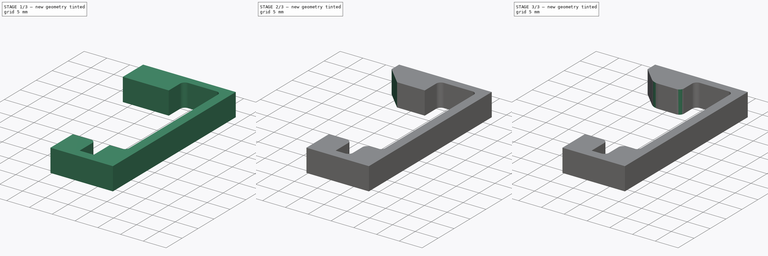
[diagram: build sequence overview — one tinted view per stage of 3, left to right]
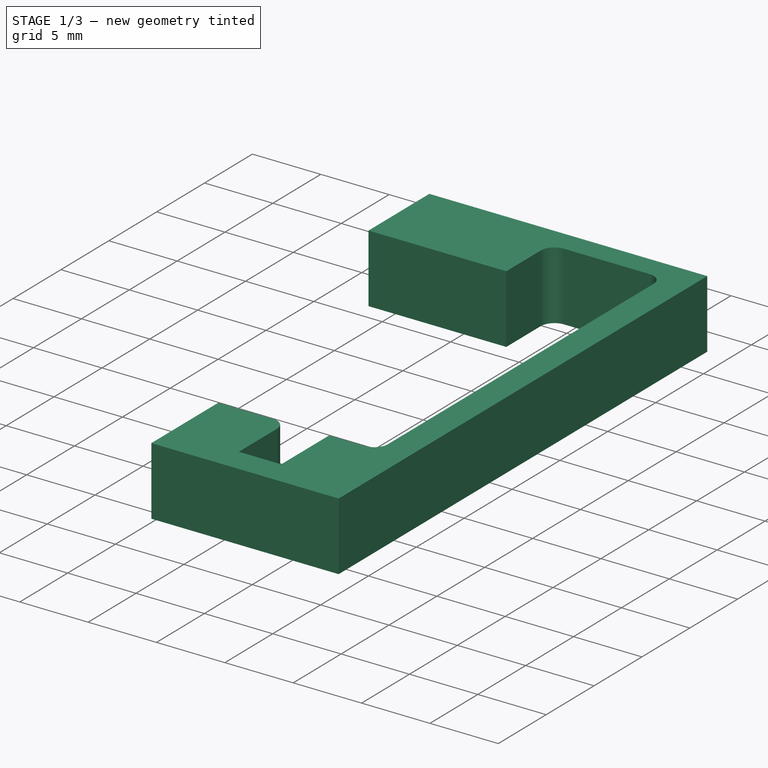
[diagram: stage 1 of 3 — iso view after this stage's code; geometry added in this stage tinted green]
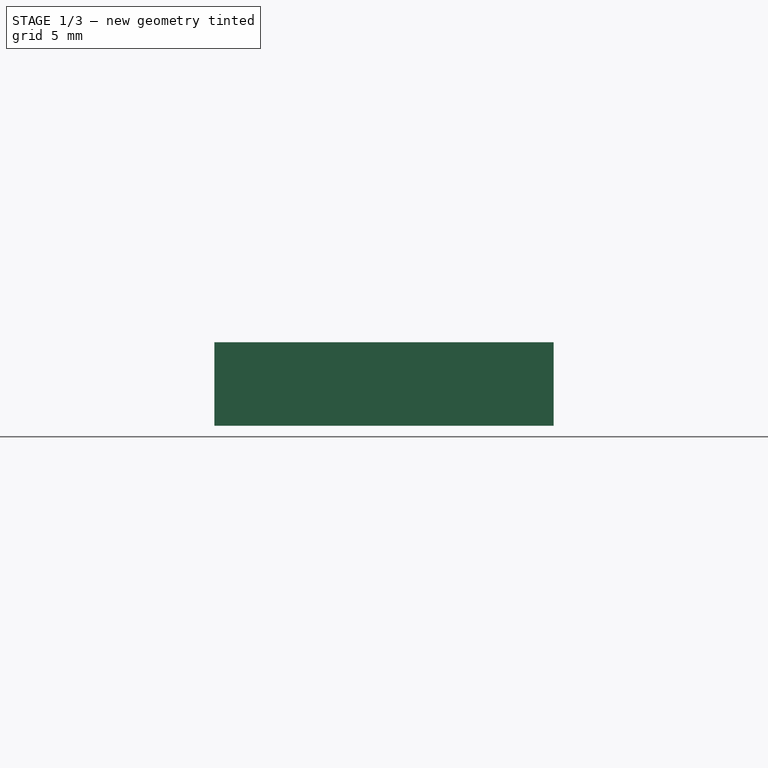
[diagram: stage 1 of 3 — front view after this stage's code; geometry added in this stage tinted green]
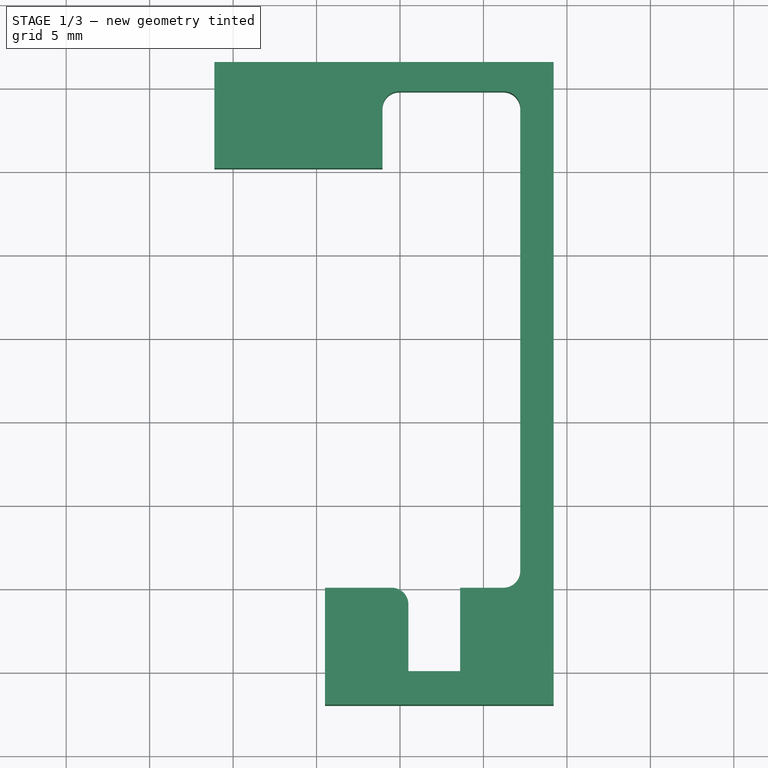
[diagram: stage 1 of 3 — top view after this stage's code; geometry added in this stage tinted green]
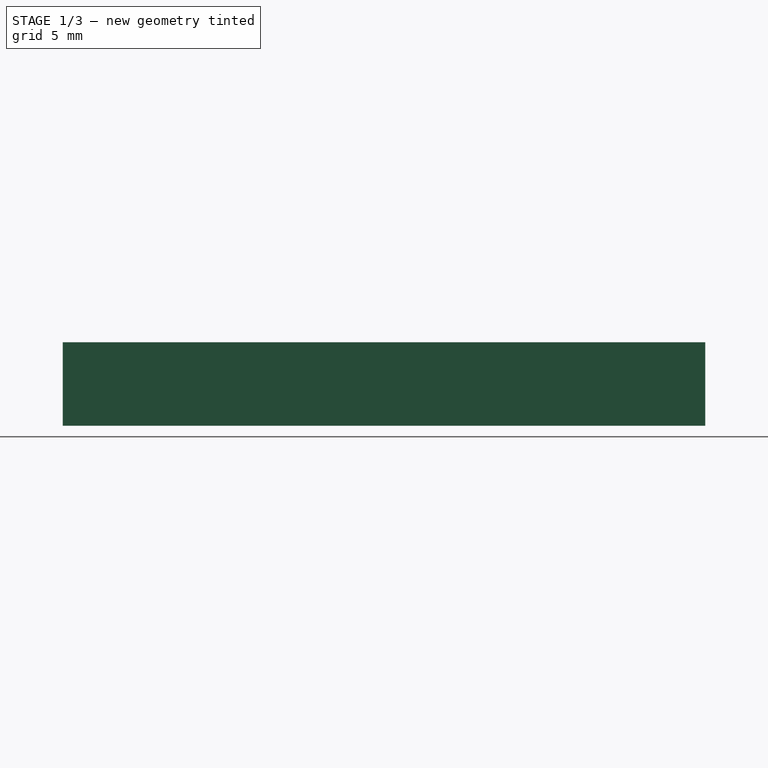
[diagram: stage 1 of 3 — right view after this stage's code; geometry added in this stage tinted green]
FCSTD DOCUMENT  (FreeCAD 1.0R39109 (Git))
Label: sv08-top-clip-v2
License: All rights reserved
LicenseURL: https://en.wikipedia.org/wiki/All_rights_reserved
objects: PartDesign::Fillet×4, PartDesign::Body×2, PartDesign::ShapeBinder×1, Sketcher::SketchObject×1, PartDesign::Pad×1, PartDesign::Chamfer×1
note: 23 computed .brp shape members not serialized (recipe doc carries the construction recipe); baked Part::Feature solids carry a one-line shape summary decoded from their .brp

FEATURE [PartDesign::Body] Body
  AllowCompound = false
  Origin = -> Origin
FEATURE [PartDesign::ShapeBinder] CopyPart__Feature003
  Placement = pos=(211.804,488.826,357.797) rot=(0,0.707107,-0.707107;3.14159rad)
  TraceSupport = false
FEATURE [Sketcher::SketchObject] Sketch
  ArcFitTolerance = 1e-06
  AttachmentSupport = -> [CopyPart__Feature003]
  ExternalGeometry = -> [CopyPart__Feature003]
  FullyConstrained = false
  MakeInternals = false
  MapMode = 5
  Placement = pos=(211.804,488.826,357.797) rot=(0,0,1;3.14159rad)
  sketch-geometry (15):
    g0: LineSegment StartX=3.2 StartY=28.8 StartZ=0 EndX=-0.4 EndY=28.8 EndZ=0
    g1: LineSegment StartX=-0.4 StartY=28.8 StartZ=0 EndX=-0.4 EndY=-0.95 EndZ=0
    g2: LineSegment StartX=-0.4 StartY=-0.95 StartZ=0 EndX=7.85 EndY=-0.95 EndZ=0
    g3: LineSegment StartX=7.85 StartY=-0.95 StartZ=0 EndX=7.85 EndY=3.65 EndZ=0
    g4: LineSegment StartX=-2.4 StartY=-2.7 StartZ=0 EndX=-2.4 EndY=35.8 EndZ=0
    g5: LineSegment StartX=-2.4 StartY=35.8 StartZ=0 EndX=11.3 EndY=35.8 EndZ=0
    g6: LineSegment StartX=11.3 StartY=35.8 StartZ=0 EndX=11.3 EndY=28.8 EndZ=0
    g7: LineSegment StartX=11.3 StartY=28.8 StartZ=0 EndX=6.3 EndY=28.8 EndZ=0
    g8: LineSegment StartX=6.3 StartY=28.8 StartZ=0 EndX=6.3 EndY=33.8 EndZ=0
    g9: LineSegment StartX=6.3 StartY=33.8 StartZ=0 EndX=3.2 EndY=33.8 EndZ=0
    g10: LineSegment StartX=3.2 StartY=33.8 StartZ=0 EndX=3.2 EndY=28.8 EndZ=0
    g11: LineSegment StartX=-2.4 StartY=-2.7 StartZ=0 EndX=7.85 EndY=-2.7 EndZ=0
    g12: LineSegment StartX=7.85 StartY=3.65 StartZ=0 EndX=17.9255 EndY=3.65 EndZ=0
    g13: LineSegment StartX=17.9255 StartY=3.65 StartZ=0 EndX=17.9255 EndY=-2.7 EndZ=0
    g14: LineSegment StartX=17.9255 StartY=-2.7 StartZ=0 EndX=7.85 EndY=-2.7 EndZ=0
  constraints (44):
    c: Horizontal(g0)
    c: Coincident(g0,g1)
    c: Vertical(g1)
    c: Coincident(g1,g2)
    c: Horizontal(g2)
    c: Coincident(g2,g3)
    c: Vertical(g3)
    c: Vertical(g4)
    c: Coincident(g4,g5)
    c: Horizontal(g5)
    c: Distance(g-2,g1) = 0.4
    c: Distance(g0,g-16) = 0.3
    c: Coincident(g5,g6)
    c: Vertical(g6)
    c: Coincident(g6,g7)
    c: Horizontal(g7)
    c: Coincident(g7,g8)
    c: Vertical(g8)
    c: Coincident(g8,g9)
    c: Horizontal(g9)
    c: Coincident(g9,g10)
    c: Coincident(g10,g0)
    c: Vertical(g10)
    c: Distance(g-14,g10) = 0.3
    c: Distance(g-13,g8) = 0.3
    c: Distance(g-15,g9) = 0.3
    c: Distance(g-12,g7) = 0.3
    c: Distance(g9,g5) = 2
    c: Distance(g1,g4) = 2
    c: Distance(g-4,g3) = 0.35
    c: Distance(g8,g6) = 5
    c: Horizontal(g11)
    c: Coincident(g4,g11)
    c: Coincident(g3,g12)
    c: Horizontal(g12)
    c: Distance(g-9,g12) = 0.35
    c: Distance(g2,g11) = 1.75
    c: Coincident(g12,g13)
    c: Vertical(g13)
    c: Coincident(g13,g14)
    c: Coincident(g14,g11)
    c: Horizontal(g14)
    c: Vertical(g11,g2)
    c: Distance(g-1,g2) = 0.95
FEATURE [PartDesign::Pad] Pad
  Direction = (3e-15,0,1)
  Length = 5
  Length2 = 10
  Placement = pos=(211.804,488.826,357.797) rot=(0,0.707107,-0.707107;3.14159rad)
  Profile = -> Sketch
  ReferenceAxis = -> Sketch [N_Axis]
  Refine = true
  Suppressed = false
  Type = 0
FEATURE [PartDesign::Fillet] Fillet
  Base = -> Pad [Edge29,Edge26,Edge23,Edge11]
  BaseFeature = -> Pad
  Placement = pos=(211.804,488.826,357.797) rot=(0,0.707107,-0.707107;3.14159rad)
  Radius = 1
  Refine = true
  SupportTransform = false
  Suppressed = false
  UseAllEdges = false
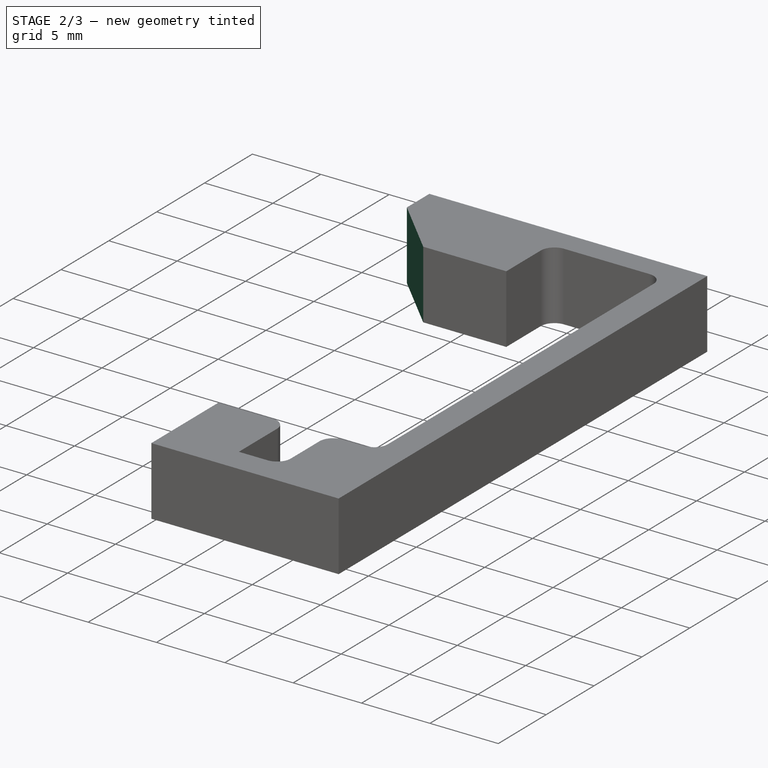
[diagram: stage 2 of 3 — iso view after this stage's code; geometry added in this stage tinted green]
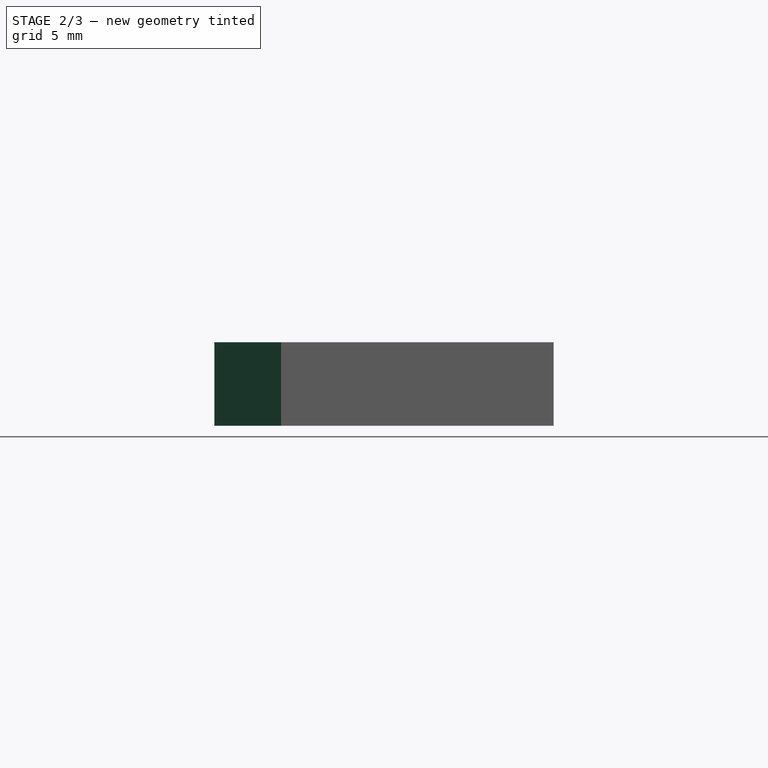
[diagram: stage 2 of 3 — front view after this stage's code; geometry added in this stage tinted green]
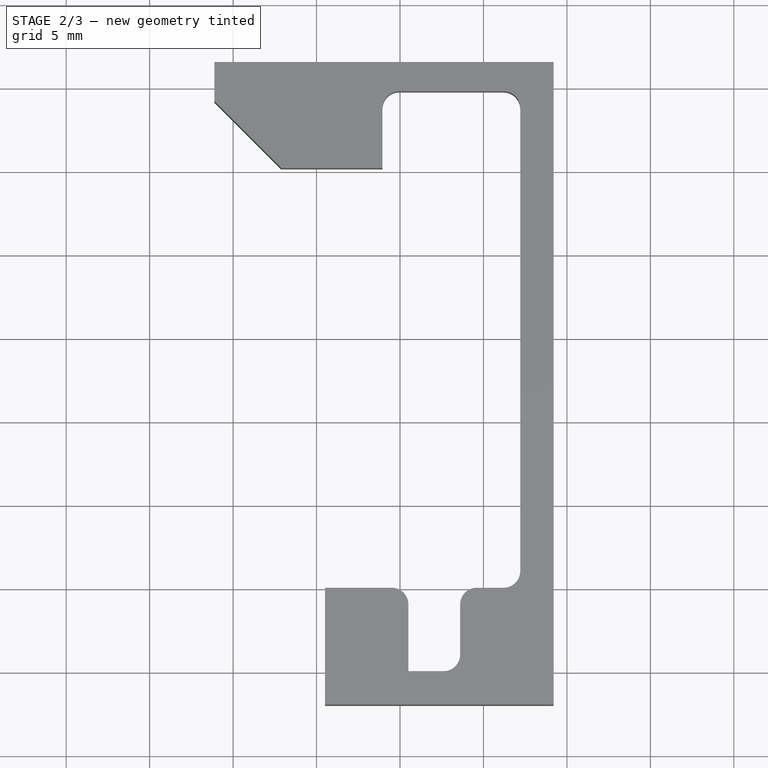
[diagram: stage 2 of 3 — top view after this stage's code; geometry added in this stage tinted green]
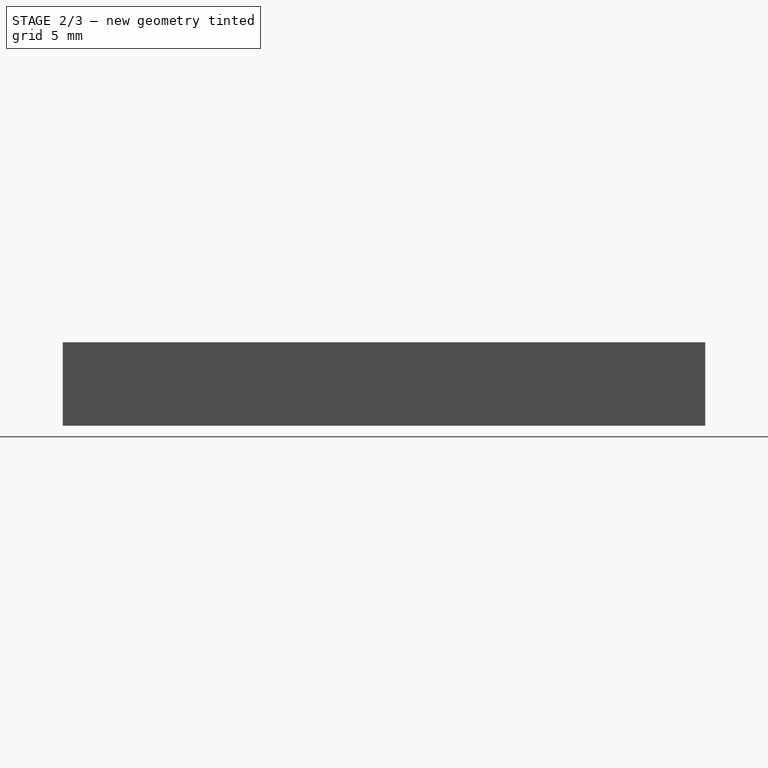
[diagram: stage 2 of 3 — right view after this stage's code; geometry added in this stage tinted green]
FEATURE [PartDesign::Fillet] Fillet001
  Base = -> Fillet [Edge45,Edge43]
  BaseFeature = -> Fillet
  Placement = pos=(211.804,488.826,357.797) rot=(0,0.707107,-0.707107;3.14159rad)
  Radius = 1
  Refine = true
  SupportTransform = false
  Suppressed = false
  UseAllEdges = false
FEATURE [PartDesign::Chamfer] Chamfer
  Angle = 45
  Base = -> Fillet001 [Edge54]
  BaseFeature = -> Fillet001
  ChamferType = 0
  FlipDirection = false
  Placement = pos=(211.804,488.826,357.797) rot=(0,0.707107,-0.707107;3.14159rad)
  Refine = true
  Size = 4
  Size2 = 1
  SupportTransform = false
  Suppressed = false
  UseAllEdges = false
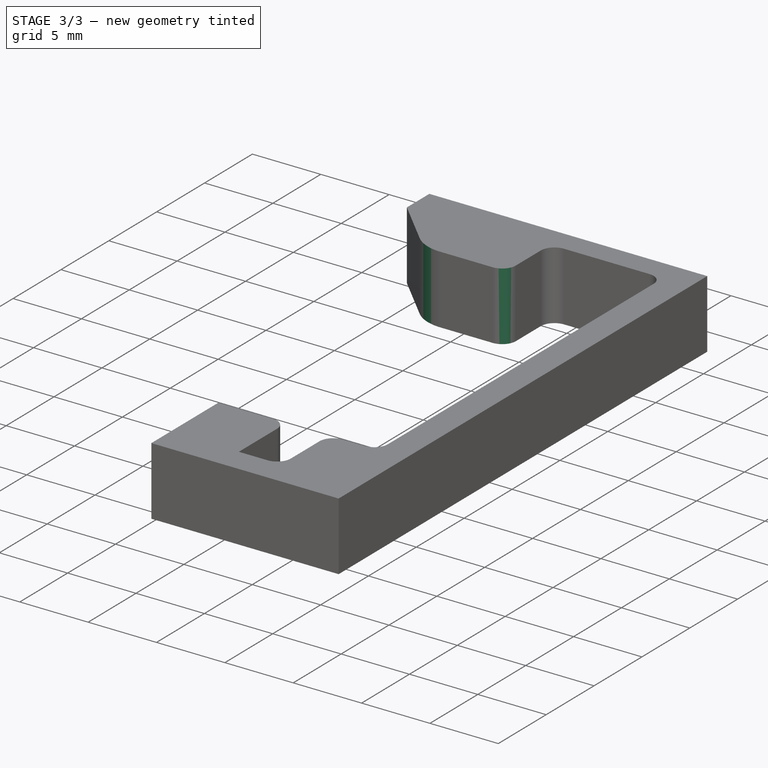
[diagram: stage 3 of 3 — iso view after this stage's code; geometry added in this stage tinted green]
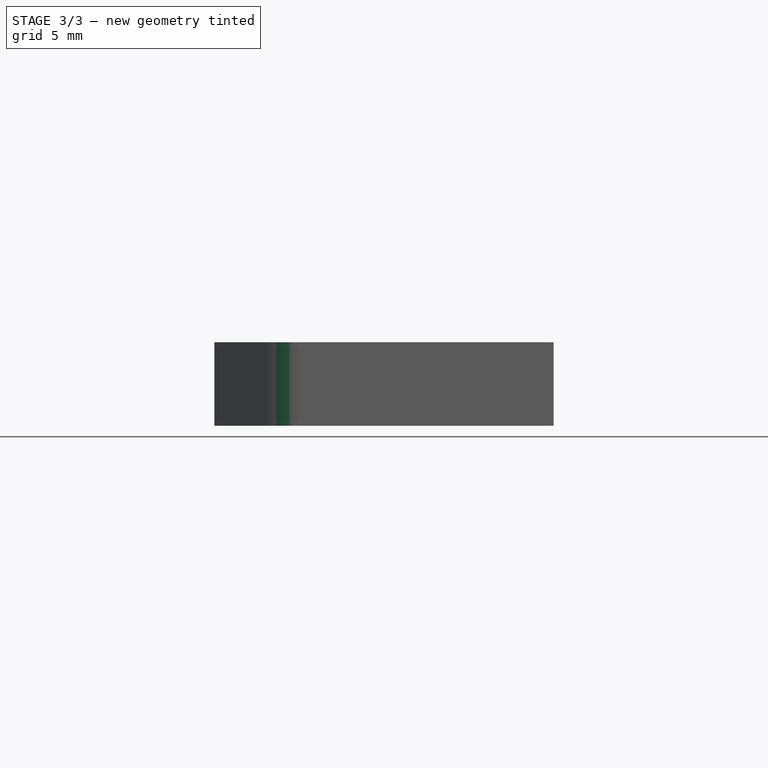
[diagram: stage 3 of 3 — front view after this stage's code; geometry added in this stage tinted green]
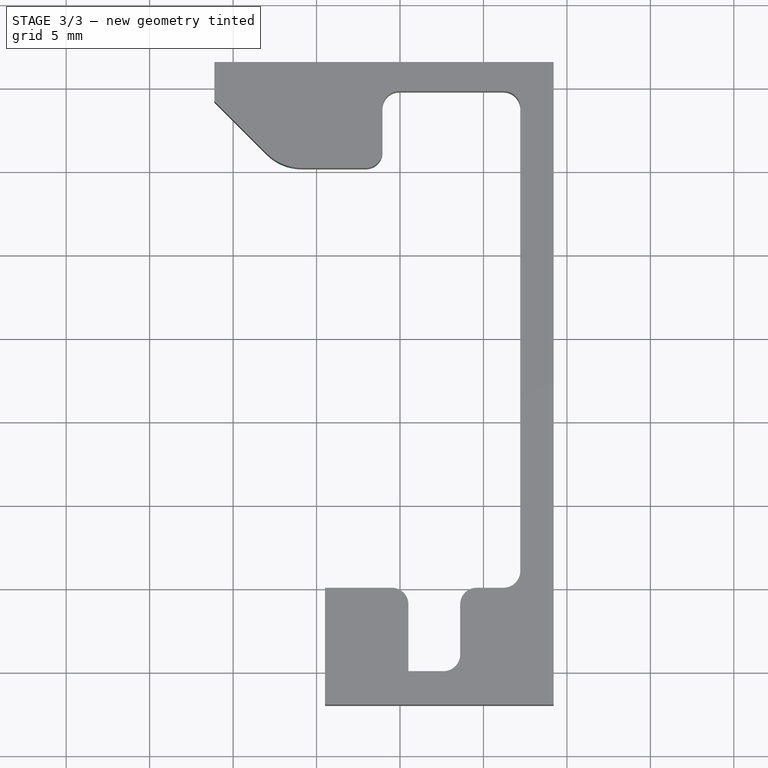
[diagram: stage 3 of 3 — top view after this stage's code; geometry added in this stage tinted green]
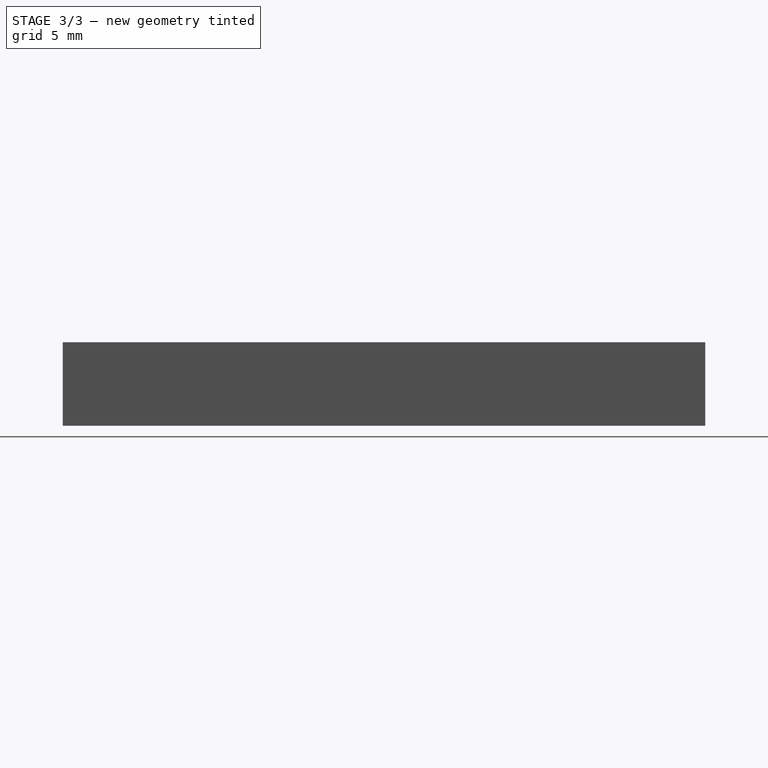
[diagram: stage 3 of 3 — right view after this stage's code; geometry added in this stage tinted green]
FEATURE [PartDesign::Fillet] Fillet002
  Base = -> Chamfer [Edge25]
  BaseFeature = -> Chamfer
  Placement = pos=(211.804,488.826,357.797) rot=(0,0.707107,-0.707107;3.14159rad)
  Radius = 3
  Refine = true
  SupportTransform = false
  Suppressed = false
  UseAllEdges = false
FEATURE [PartDesign::Fillet] Fillet003
  Base = -> Fillet002 [Edge30]
  BaseFeature = -> Fillet002
  Placement = pos=(211.804,488.826,357.797) rot=(0,0.707107,-0.707107;3.14159rad)
  Radius = 1
  Refine = true
  SupportTransform = false
  Suppressed = false
  UseAllEdges = false
FEATURE [PartDesign::Body] Body001
  AllowCompound = false
  Group = -> [CopyPart__Feature003,Sketch,Pad,Fillet,Fillet001,Chamfer,Fillet002,Fillet003]
  Origin = -> Origin001
  Tip = -> Fillet003
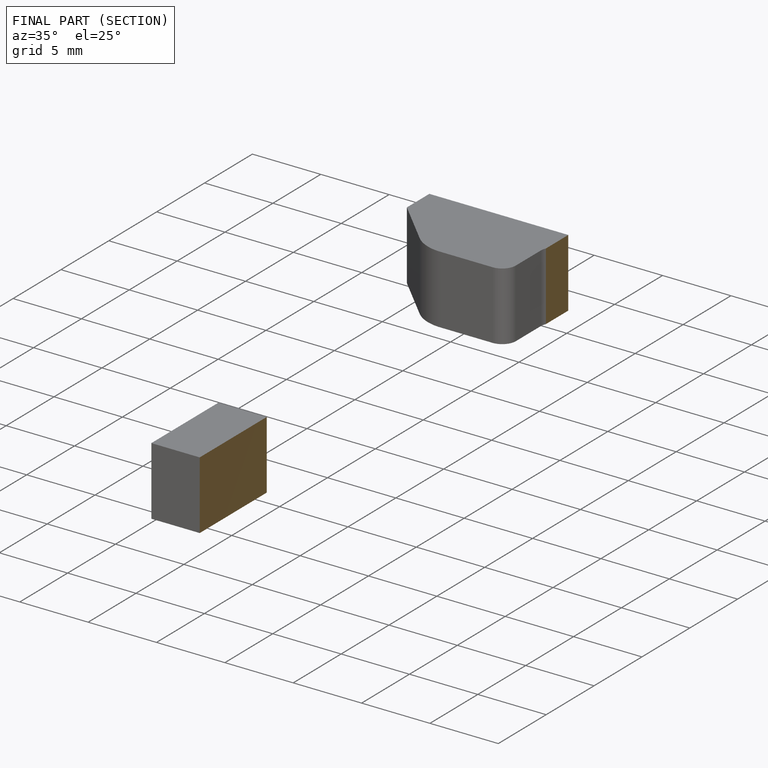
[diagram: finished part — half-section view (interior)]
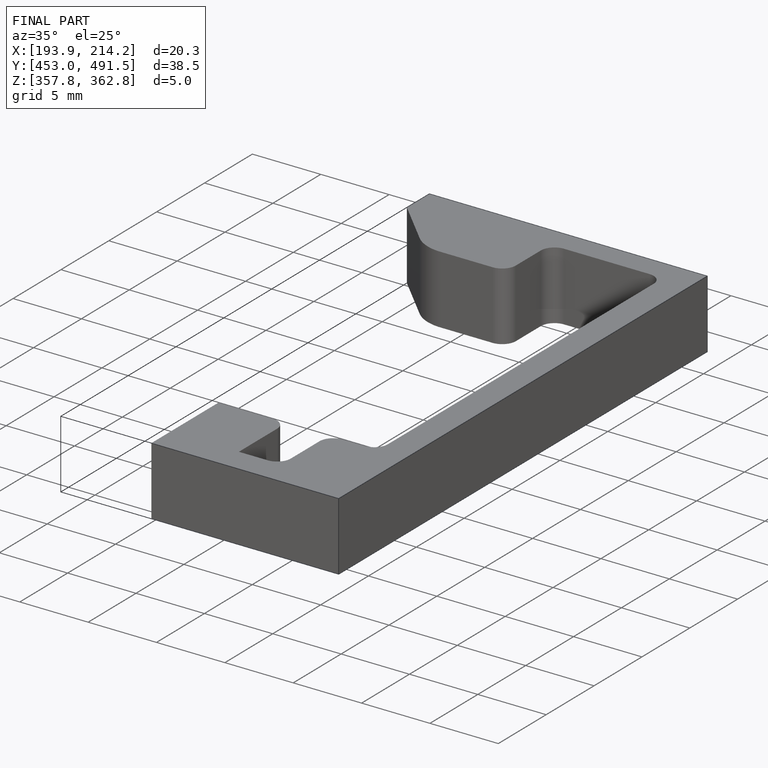
[diagram: finished part — iso view with bounding-box wireframe]
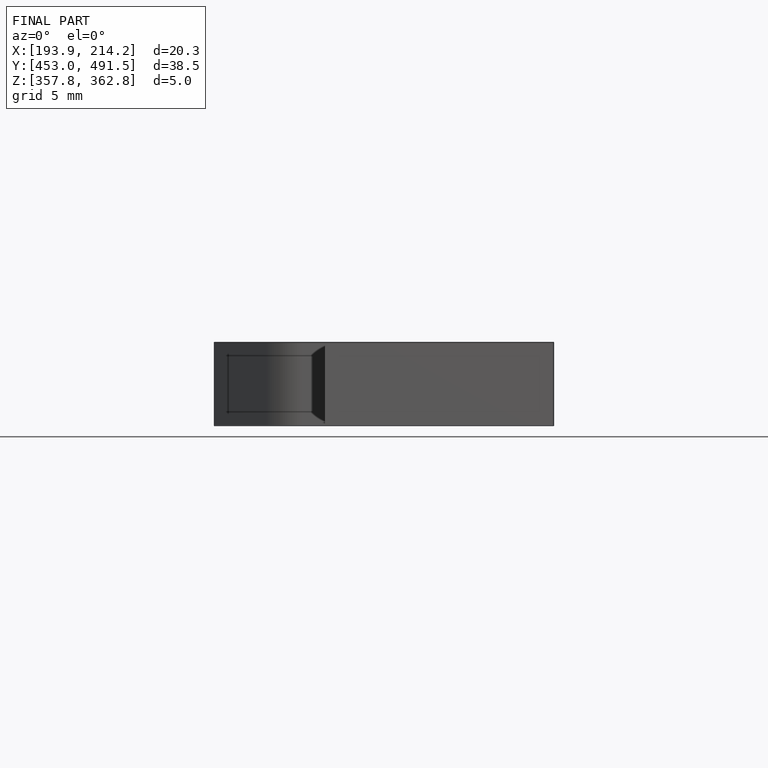
[diagram: finished part — front view with bounding-box wireframe]
